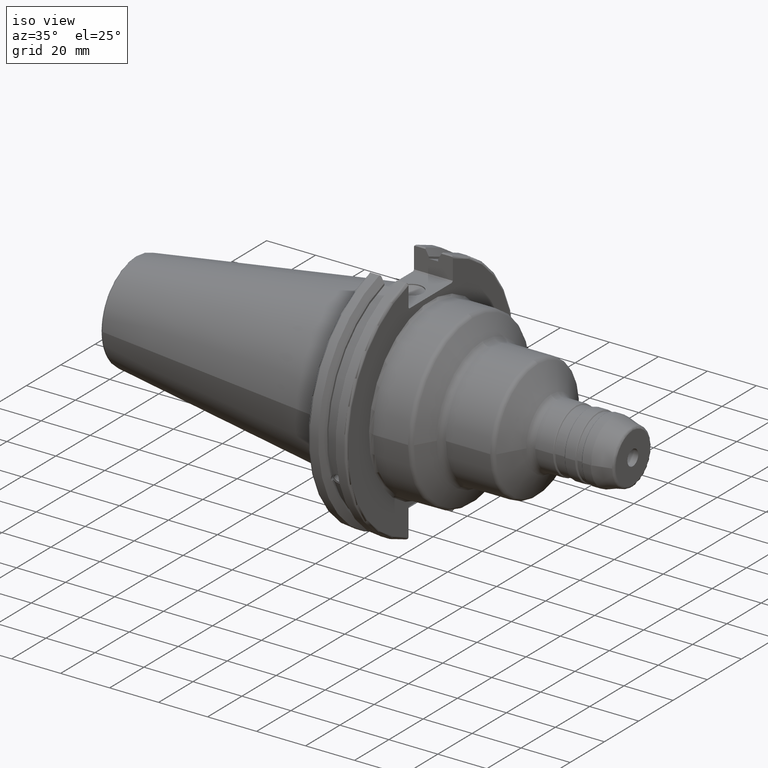
[diagram: clean part render]
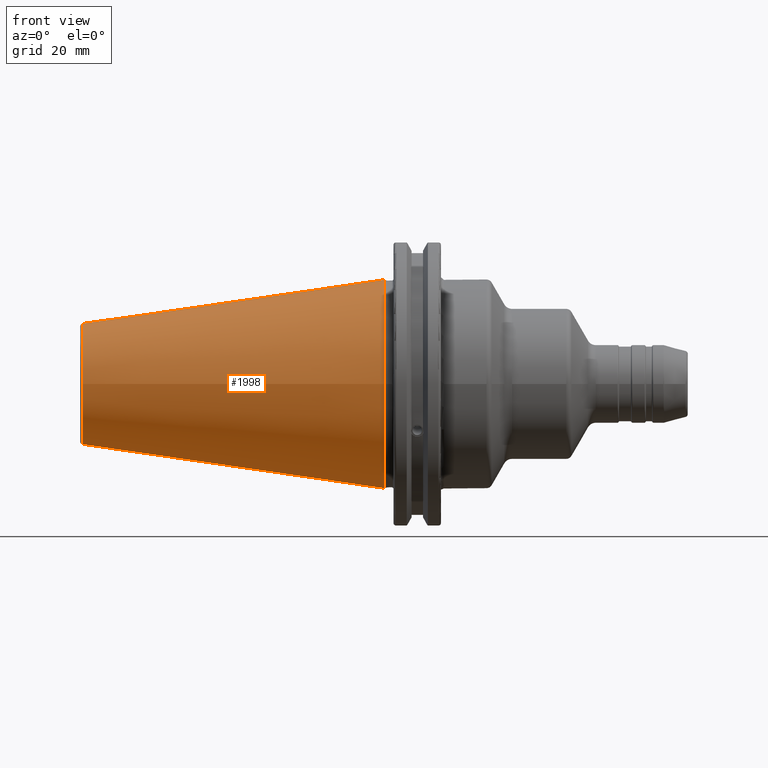
[diagram: tour spotlight — one face highlighted and labeled with its STEP entity id]
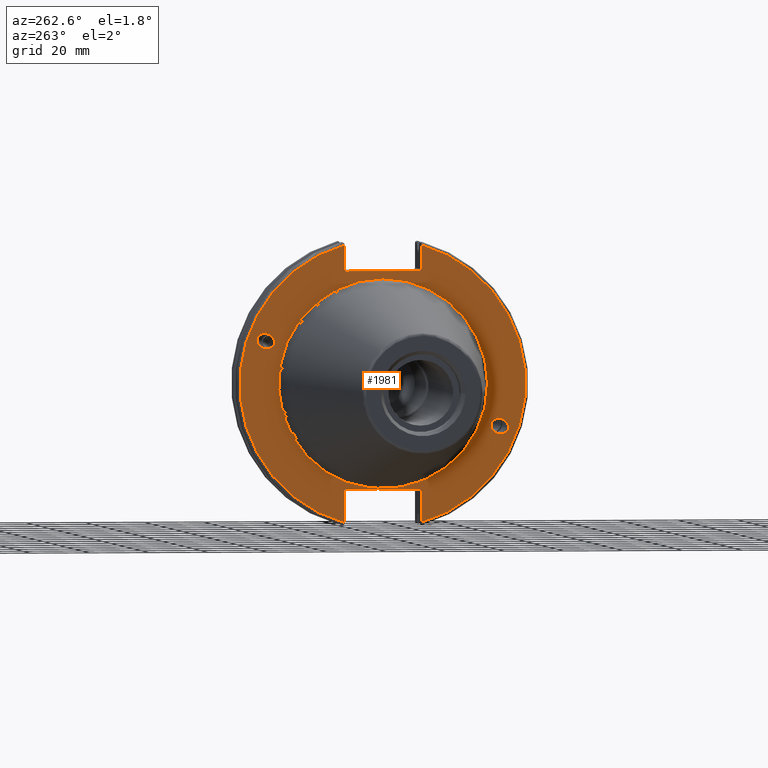
[diagram: tour spotlight — one face highlighted and labeled with its STEP entity id]
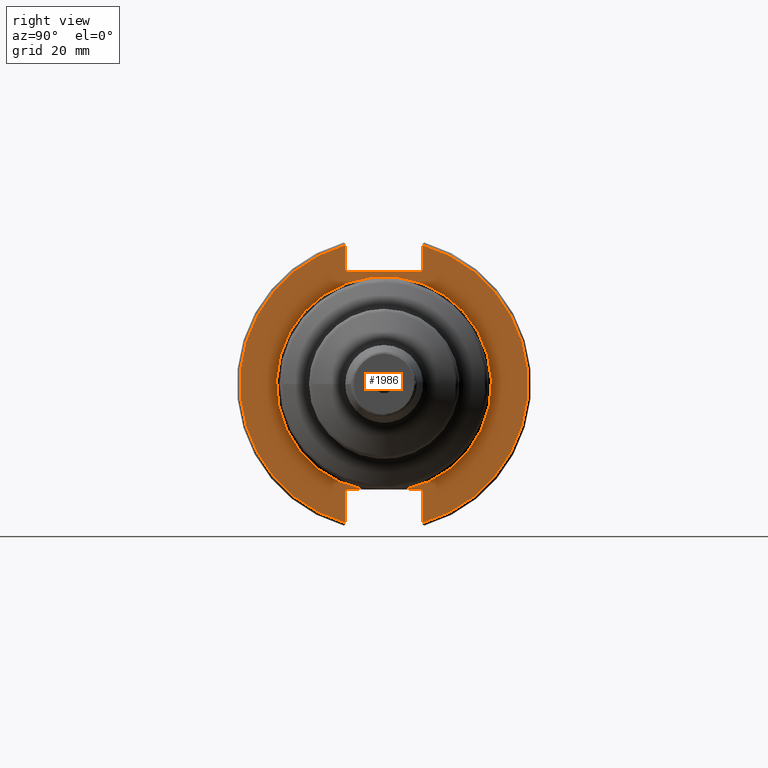
[diagram: tour spotlight — one face highlighted and labeled with its STEP entity id]
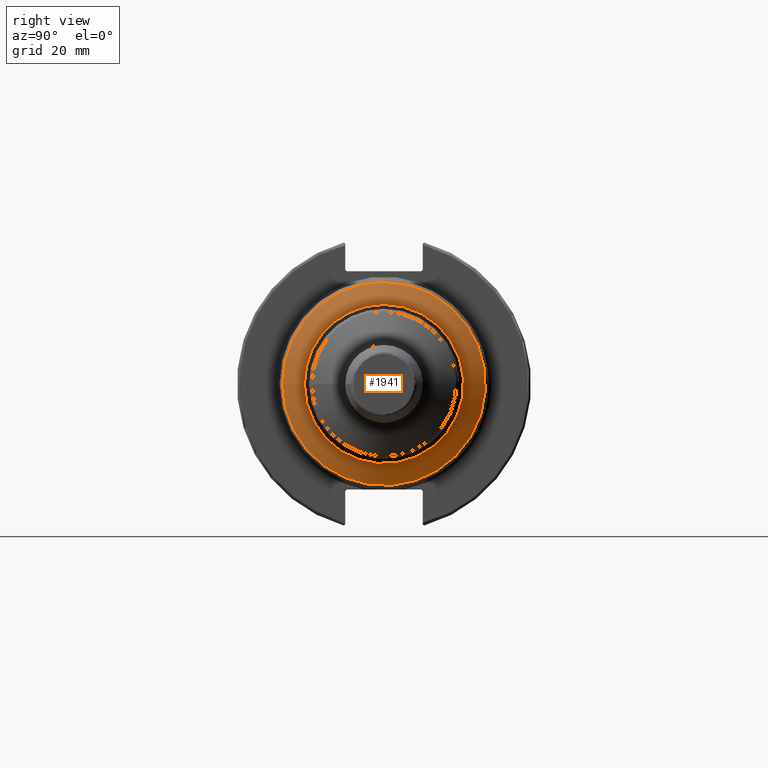
[diagram: tour spotlight — one face highlighted and labeled with its STEP entity id]
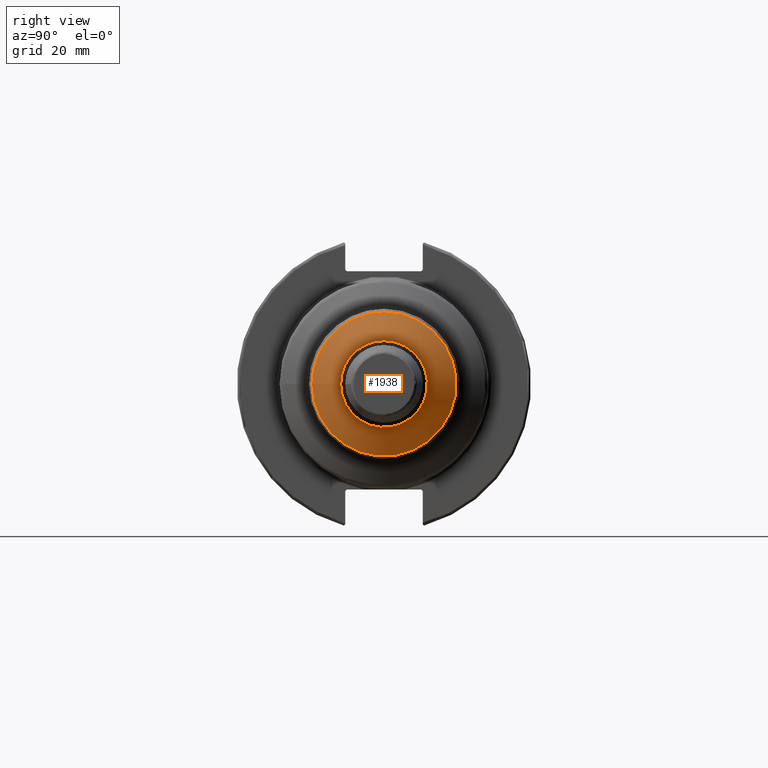
[diagram: tour spotlight — one face highlighted and labeled with its STEP entity id]
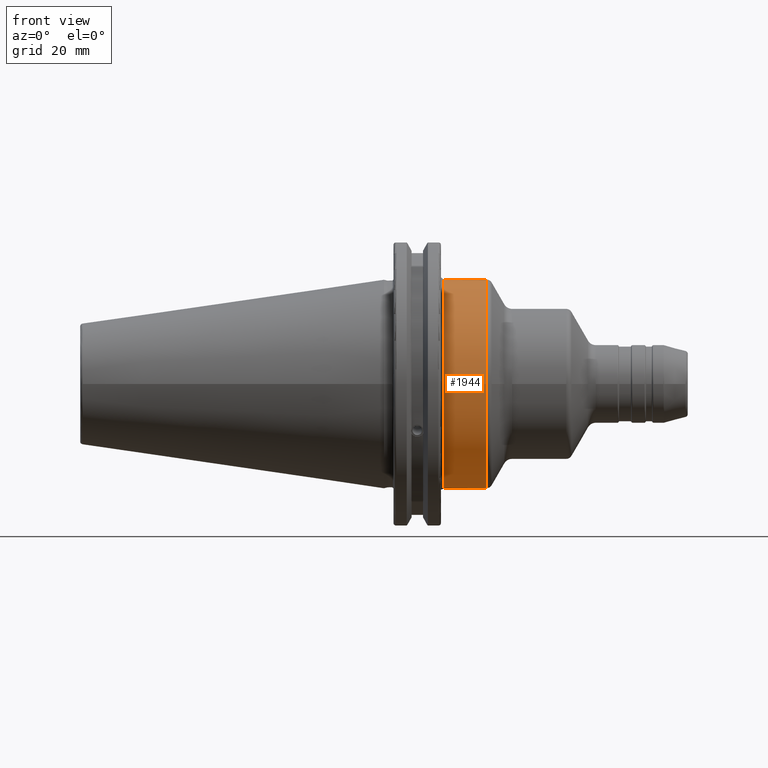
[diagram: tour spotlight — one face highlighted and labeled with its STEP entity id]
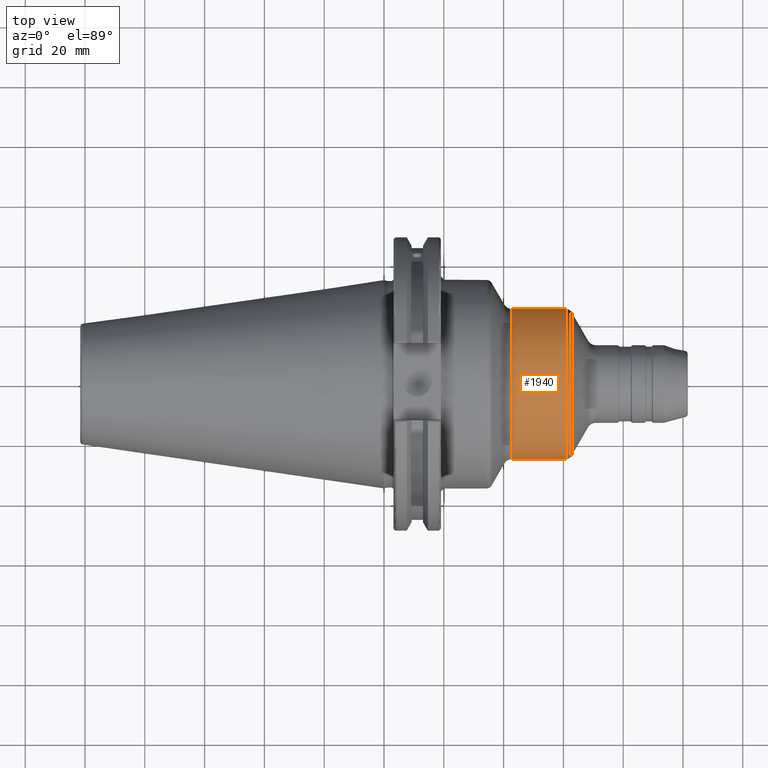
[diagram: tour spotlight — one face highlighted and labeled with its STEP entity id]
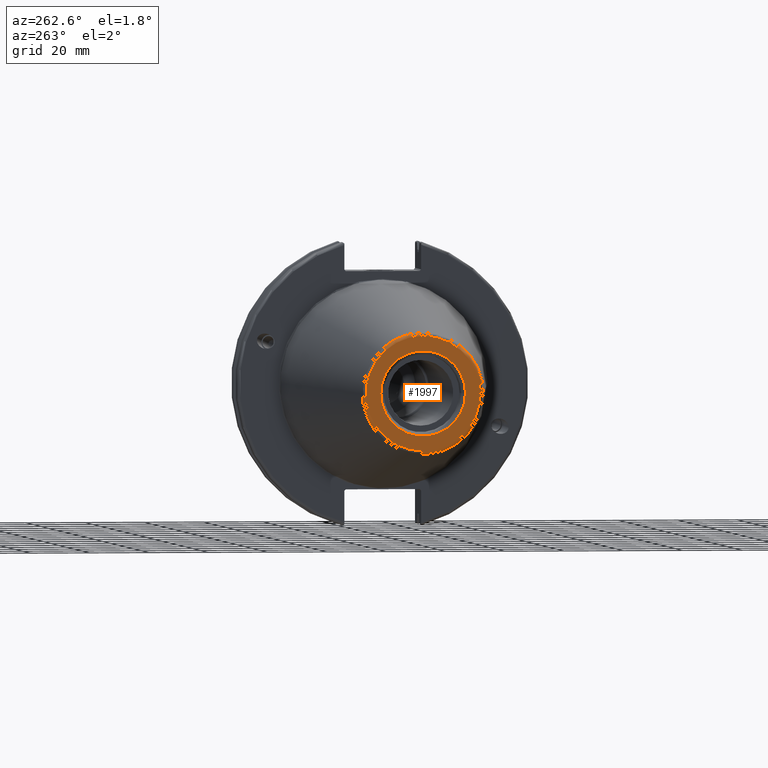
[diagram: tour spotlight — one face highlighted and labeled with its STEP entity id]
A machine part: a face-by-face anatomy tour. The part has 112 B-rep faces; the first image is the clean iso view, then the 8 largest visible faces are spotlighted one at a time (largest first), each with its STEP entity span.

Face 1 — front view, entity #1998. In plain terms, the highlighted conical surface has half-angle 8.297 deg.
Definition (entity closure, byte-faithful):
#164=CONICAL_SURFACE('',#2262,27.5166666666666,0.14481249823894);
#253=FACE_OUTER_BOUND('',#382,.T.);
#382=EDGE_LOOP('',(#1746,#1747,#1748,#1749,#1750));
#500=LINE('',#3945,#607);
#607=VECTOR('',#2820,27.5166666666666);
#749=CIRCLE('',#2256,20.233121911427);
#750=CIRCLE('',#2257,20.233121911427);
#754=CIRCLE('',#2263,34.925);
#954=VERTEX_POINT('',#3932);
#955=VERTEX_POINT('',#3933);
#958=VERTEX_POINT('',#3943);
#1234=EDGE_CURVE('',#954,#955,#749,.T.);
#1235=EDGE_CURVE('',#955,#954,#750,.T.);
#1239=EDGE_CURVE('',#958,#958,#754,.T.);
#1240=EDGE_CURVE('',#958,#955,#500,.T.);
#1746=ORIENTED_EDGE('',*,*,#1239,.F.);
#1747=ORIENTED_EDGE('',*,*,#1240,.T.);
#1748=ORIENTED_EDGE('',*,*,#1234,.F.);
#1749=ORIENTED_EDGE('',*,*,#1235,.F.);
#1750=ORIENTED_EDGE('',*,*,#1240,.F.);
#1998=ADVANCED_FACE('',(#253),#164,.T.);
#2256=AXIS2_PLACEMENT_3D('',#3934,#2804,#2805);
#2257=AXIS2_PLACEMENT_3D('',#3935,#2806,#2807);
#2262=AXIS2_PLACEMENT_3D('',#3942,#2816,#2817);
#2263=AXIS2_PLACEMENT_3D('',#3944,#2818,#2819);
#2804=DIRECTION('center_axis',(-1.,0.,0.));
#2805=DIRECTION('ref_axis',(0.,-1.,3.06161699786838E-17));
#2806=DIRECTION('center_axis',(-1.,0.,0.));
#2807=DIRECTION('ref_axis',(0.,-1.,3.06161699786838E-17));
#2816=DIRECTION('center_axis',(1.,0.,0.));
#2817=DIRECTION('ref_axis',(0.,1.,0.));
#2818=DIRECTION('center_axis',(1.,0.,0.));
#2819=DIRECTION('ref_axis',(0.,0.,-1.));
#2820=DIRECTION('',(-0.989532981063281,0.144306893071729,1.76724974695192E-17));
#3932=CARTESIAN_POINT('',(-100.744306893072,-2.47784279855872E-15,20.233121911427));
#3933=CARTESIAN_POINT('',(-100.744306893072,-20.233121911427,-2.47784279855872E-15));
#3934=CARTESIAN_POINT('Origin',(-100.744306893072,0.,-3.09730349819841E-15));
#3935=CARTESIAN_POINT('Origin',(-100.744306893072,0.,-3.09730349819841E-15));
#3942=CARTESIAN_POINT('Origin',(-50.8,0.,0.));
#3943=CARTESIAN_POINT('',(-8.88178419700125E-15,-34.925,-4.27707894602213E-15));
#3944=CARTESIAN_POINT('Origin',(0.,0.,0.));
#3945=CARTESIAN_POINT('',(-50.8,-27.5166666666666,-3.3698197756538E-15));

Face 2 — auxiliary view, entity #1981. In plain terms, the highlighted planar face has unit normal (-1, 0, 0).
Definition (entity closure, byte-faithful):
#31=ELLIPSE('',#2186,3.05193647190364,2.5);
#32=ELLIPSE('',#2220,3.05193647190364,2.5);
#44=PLANE('',#2230);
#104=FACE_BOUND('',#362,.T.);
#105=FACE_BOUND('',#363,.T.);
#106=FACE_BOUND('',#364,.T.);
#236=FACE_OUTER_BOUND('',#361,.T.);
#361=EDGE_LOOP('',(#1625,#1626,#1627,#1628,#1629,#1630,#1631,#1632,#1633,
#1634,#1635,#1636));
#362=EDGE_LOOP('',(#1637));
#363=EDGE_LOOP('',(#1638));
#364=EDGE_LOOP('',(#1639));
#462=LINE('',#3693,#569);
#463=LINE('',#3695,#570);
#464=LINE('',#3697,#571);
#465=LINE('',#3699,#572);
#466=LINE('',#3701,#573);
#467=LINE('',#3705,#574);
#468=LINE('',#3707,#575);
#469=LINE('',#3709,#576);
#470=LINE('',#3711,#577);
#471=LINE('',#3712,#578);
#569=VECTOR('',#2718,10.);
#570=VECTOR('',#2719,10.);
#571=VECTOR('',#2720,10.);
#572=VECTOR('',#2721,10.);
#573=VECTOR('',#2722,10.);
#574=VECTOR('',#2725,10.);
#575=VECTOR('',#2726,10.);
#576=VECTOR('',#2727,10.);
#577=VECTOR('',#2728,10.);
#578=VECTOR('',#2729,10.);
#737=CIRCLE('',#2228,35.125);
#739=CIRCLE('',#2231,48.2125);
#740=CIRCLE('',#2232,48.2125);
#860=VERTEX_POINT('',#3410);
#898=VERTEX_POINT('',#3669);
#903=VERTEX_POINT('',#3684);
#904=VERTEX_POINT('',#3689);
#905=VERTEX_POINT('',#3690);
#906=VERTEX_POINT('',#3692);
#907=VERTEX_POINT('',#3694);
#908=VERTEX_POINT('',#3696);
#909=VERTEX_POINT('',#3698);
#910=VERTEX_POINT('',#3700);
#911=VERTEX_POINT('',#3702);
#912=VERTEX_POINT('',#3704);
#913=VERTEX_POINT('',#3706);
#914=VERTEX_POINT('',#3708);
#915=VERTEX_POINT('',#3710);
#1104=EDGE_CURVE('',#860,#860,#31,.T.);
#1155=EDGE_CURVE('',#898,#898,#32,.T.);
#1162=EDGE_CURVE('',#903,#903,#737,.T.);
#1164=EDGE_CURVE('',#904,#905,#739,.T.);
#1165=EDGE_CURVE('',#904,#906,#462,.T.);
#1166=EDGE_CURVE('',#907,#906,#463,.T.);
#1167=EDGE_CURVE('',#907,#908,#464,.T.);
#1168=EDGE_CURVE('',#909,#908,#465,.T.);
#1169=EDGE_CURVE('',#909,#910,#466,.T.);
#1170=EDGE_CURVE('',#911,#910,#740,.T.);
#1171=EDGE_CURVE('',#911,#912,#467,.T.);
#1172=EDGE_CURVE('',#913,#912,#468,.T.);
#1173=EDGE_CURVE('',#913,#914,#469,.T.);
#1174=EDGE_CURVE('',#915,#914,#470,.T.);
#1175=EDGE_CURVE('',#915,#905,#471,.T.);
#1625=ORIENTED_EDGE('',*,*,#1164,.F.);
#1626=ORIENTED_EDGE('',*,*,#1165,.T.);
#1627=ORIENTED_EDGE('',*,*,#1166,.F.);
#1628=ORIENTED_EDGE('',*,*,#1167,.T.);
#1629=ORIENTED_EDGE('',*,*,#1168,.F.);
#1630=ORIENTED_EDGE('',*,*,#1169,.T.);
#1631=ORIENTED_EDGE('',*,*,#1170,.F.);
#1632=ORIENTED_EDGE('',*,*,#1171,.T.);
#1633=ORIENTED_EDGE('',*,*,#1172,.F.);
#1634=ORIENTED_EDGE('',*,*,#1173,.T.);
#1635=ORIENTED_EDGE('',*,*,#1174,.F.);
#1636=ORIENTED_EDGE('',*,*,#1175,.T.);
#1637=ORIENTED_EDGE('',*,*,#1104,.T.);
#1638=ORIENTED_EDGE('',*,*,#1155,.T.);
#1639=ORIENTED_EDGE('',*,*,#1162,.F.);
#1981=ADVANCED_FACE('',(#236,#104,#105,#106),#44,.T.);
#2186=AXIS2_PLACEMENT_3D('',#3412,#2608,#2609);
#2220=AXIS2_PLACEMENT_3D('',#3671,#2692,#2693);
#2228=AXIS2_PLACEMENT_3D('',#3686,#2710,#2711);
#2230=AXIS2_PLACEMENT_3D('',#3688,#2714,#2715);
#2231=AXIS2_PLACEMENT_3D('',#3691,#2716,#2717);
#2232=AXIS2_PLACEMENT_3D('',#3703,#2723,#2724);
#2608=DIRECTION('center_axis',(1.,0.,0.));
#2609=DIRECTION('ref_axis',(0.,-0.939692620785907,-0.342020143325671));
#2692=DIRECTION('center_axis',(1.,0.,0.));
#2693=DIRECTION('ref_axis',(0.,0.939692620785907,0.342020143325672));
#2710=DIRECTION('center_axis',(-1.,0.,0.));
#2711=DIRECTION('ref_axis',(0.,-1.,1.83697019872103E-16));
#2714=DIRECTION('center_axis',(-1.,0.,0.));
#2715=DIRECTION('ref_axis',(0.,0.,1.));
#2716=DIRECTION('center_axis',(1.,0.,0.));
#2717=DIRECTION('ref_axis',(0.,-1.,1.60812264967664E-16));
#2718=DIRECTION('',(0.,0.,-1.));
#2719=DIRECTION('',(0.,-0.707106781186549,0.707106781186546));
#2720=DIRECTION('',(0.,1.,0.));
#2721=DIRECTION('',(0.,-0.707106781186549,-0.707106781186546));
#2722=DIRECTION('',(0.,0.,1.));
#2723=DIRECTION('center_axis',(1.,0.,0.));
#2724=DIRECTION('ref_axis',(0.,1.,-6.12323399573677E-17));
#2725=DIRECTION('',(0.,0.,1.));
#2726=DIRECTION('',(0.,0.707106781186549,-0.707106781186546));
#2727=DIRECTION('',(0.,-1.,0.));
#2728=DIRECTION('',(0.,0.707106781186549,0.707106781186546));
#2729=DIRECTION('',(0.,0.,-1.));
#3410=CARTESIAN_POINT('',(3.175,-36.5992078912529,-13.3210222701368));
#3412=CARTESIAN_POINT('Origin',(3.175,-39.4670900730082,-14.3648460196781));
#3669=CARTESIAN_POINT('',(3.175,36.5992078912529,13.3210222701368));
#3671=CARTESIAN_POINT('Origin',(3.175,39.4670900730082,14.3648460196781));
#3684=CARTESIAN_POINT('',(3.175,-4.30157188200508E-15,35.125));
#3686=CARTESIAN_POINT('Origin',(3.175,0.,0.));
#3688=CARTESIAN_POINT('Origin',(3.175,49.2125,0.));
#3689=CARTESIAN_POINT('',(3.175,-12.95,46.4407434937254));
#3690=CARTESIAN_POINT('',(3.175,-12.95,-46.4407434937254));
#3691=CARTESIAN_POINT('Origin',(3.175,0.,0.));
#3692=CARTESIAN_POINT('',(3.175,-12.95,38.219));
#3693=CARTESIAN_POINT('',(3.175,-12.95,18.8595));
#3694=CARTESIAN_POINT('',(3.175,-12.45,37.719));
#3695=CARTESIAN_POINT('',(3.175,12.2703750000001,12.998625));
#3696=CARTESIAN_POINT('',(3.175,12.45,37.719));
#3697=CARTESIAN_POINT('',(3.175,24.60625,37.719));
#3698=CARTESIAN_POINT('',(3.175,12.95,38.219));
#3699=CARTESIAN_POINT('',(3.175,12.335875,37.604875));
#3700=CARTESIAN_POINT('',(3.175,12.95,46.4407434937254));
#3701=CARTESIAN_POINT('',(3.175,12.95,18.8595));
#3702=CARTESIAN_POINT('',(3.175,12.95,-46.4407434937254));
#3703=CARTESIAN_POINT('Origin',(3.175,0.,0.));
#3704=CARTESIAN_POINT('',(3.175,12.95,-35.806));
#3705=CARTESIAN_POINT('',(3.175,12.95,-17.653));
#3706=CARTESIAN_POINT('',(3.175,12.45,-35.306));
#3707=CARTESIAN_POINT('',(3.175,12.939125,-35.795125));
#3708=CARTESIAN_POINT('',(3.175,-12.45,-35.306));
#3709=CARTESIAN_POINT('',(3.175,24.60625,-35.306));
#3710=CARTESIAN_POINT('',(3.175,-12.95,-35.806));
#3711=CARTESIAN_POINT('',(3.175,11.6671250000001,-11.188875));
#3712=CARTESIAN_POINT('',(3.175,-12.95,-17.653));

Face 3 — right view, entity #1986. In plain terms, the highlighted planar face has unit normal (1, 0, 0).
Definition (entity closure, byte-faithful):
#47=PLANE('',#2240);
#241=FACE_OUTER_BOUND('',#369,.T.);
#369=EDGE_LOOP('',(#1667,#1668,#1669,#1670,#1671,#1672,#1673,#1674,#1675,
#1676,#1677,#1678,#1679,#1680));
#475=LINE('',#3764,#582);
#478=LINE('',#3779,#585);
#479=LINE('',#3780,#586);
#480=LINE('',#3782,#587);
#481=LINE('',#3784,#588);
#482=LINE('',#3786,#589);
#483=LINE('',#3788,#590);
#484=LINE('',#3790,#591);
#485=LINE('',#3794,#592);
#486=LINE('',#3796,#593);
#487=LINE('',#3797,#594);
#582=VECTOR('',#2747,10.);
#585=VECTOR('',#2752,10.);
#586=VECTOR('',#2753,10.);
#587=VECTOR('',#2754,10.);
#588=VECTOR('',#2755,10.);
#589=VECTOR('',#2756,10.);
#590=VECTOR('',#2757,10.);
#591=VECTOR('',#2758,10.);
#592=VECTOR('',#2761,10.);
#593=VECTOR('',#2762,10.);
#594=VECTOR('',#2763,10.);
#707=CIRCLE('',#2165,35.95);
#742=CIRCLE('',#2236,48.2125);
#744=CIRCLE('',#2241,48.2125);
#836=VERTEX_POINT('',#3195);
#837=VERTEX_POINT('',#3202);
#918=VERTEX_POINT('',#3719);
#919=VERTEX_POINT('',#3726);
#925=VERTEX_POINT('',#3763);
#927=VERTEX_POINT('',#3778);
#928=VERTEX_POINT('',#3781);
#929=VERTEX_POINT('',#3783);
#930=VERTEX_POINT('',#3785);
#931=VERTEX_POINT('',#3787);
#932=VERTEX_POINT('',#3789);
#933=VERTEX_POINT('',#3791);
#934=VERTEX_POINT('',#3793);
#935=VERTEX_POINT('',#3795);
#1073=EDGE_CURVE('',#836,#837,#707,.T.);
#1179=EDGE_CURVE('',#918,#919,#742,.T.);
#1187=EDGE_CURVE('',#925,#919,#475,.T.);
#1192=EDGE_CURVE('',#836,#927,#478,.T.);
#1193=EDGE_CURVE('',#925,#927,#479,.T.);
#1194=EDGE_CURVE('',#918,#928,#480,.T.);
#1195=EDGE_CURVE('',#929,#928,#481,.T.);
#1196=EDGE_CURVE('',#929,#930,#482,.T.);
#1197=EDGE_CURVE('',#931,#930,#483,.T.);
#1198=EDGE_CURVE('',#931,#932,#484,.T.);
#1199=EDGE_CURVE('',#933,#932,#744,.T.);
#1200=EDGE_CURVE('',#933,#934,#485,.T.);
#1201=EDGE_CURVE('',#935,#934,#486,.T.);
#1202=EDGE_CURVE('',#935,#837,#487,.T.);
#1667=ORIENTED_EDGE('',*,*,#1073,.F.);
#1668=ORIENTED_EDGE('',*,*,#1192,.T.);
#1669=ORIENTED_EDGE('',*,*,#1193,.F.);
#1670=ORIENTED_EDGE('',*,*,#1187,.T.);
#1671=ORIENTED_EDGE('',*,*,#1179,.F.);
#1672=ORIENTED_EDGE('',*,*,#1194,.T.);
#1673=ORIENTED_EDGE('',*,*,#1195,.F.);
#1674=ORIENTED_EDGE('',*,*,#1196,.T.);
#1675=ORIENTED_EDGE('',*,*,#1197,.F.);
#1676=ORIENTED_EDGE('',*,*,#1198,.T.);
#1677=ORIENTED_EDGE('',*,*,#1199,.F.);
#1678=ORIENTED_EDGE('',*,*,#1200,.T.);
#1679=ORIENTED_EDGE('',*,*,#1201,.F.);
#1680=ORIENTED_EDGE('',*,*,#1202,.T.);
#1986=ADVANCED_FACE('',(#241),#47,.T.);
#2165=AXIS2_PLACEMENT_3D('',#3203,#2554,#2555);
#2236=AXIS2_PLACEMENT_3D('',#3727,#2737,#2738);
#2240=AXIS2_PLACEMENT_3D('',#3777,#2750,#2751);
#2241=AXIS2_PLACEMENT_3D('',#3792,#2759,#2760);
#2554=DIRECTION('center_axis',(1.,0.,0.));
#2555=DIRECTION('ref_axis',(0.,-1.,-1.22464679914735E-16));
#2737=DIRECTION('center_axis',(-1.,0.,0.));
#2738=DIRECTION('ref_axis',(0.,1.,-6.12323399573677E-17));
#2747=DIRECTION('',(0.,0.,-1.));
#2750=DIRECTION('center_axis',(1.,0.,0.));
#2751=DIRECTION('ref_axis',(0.,0.,-1.));
#2752=DIRECTION('',(0.,1.,0.));
#2753=DIRECTION('',(0.,-0.707106781186549,0.707106781186546));
#2754=DIRECTION('',(0.,0.,-1.));
#2755=DIRECTION('',(0.,0.707106781186549,0.707106781186546));
#2756=DIRECTION('',(0.,-1.,0.));
#2757=DIRECTION('',(0.,0.707106781186549,-0.707106781186546));
#2758=DIRECTION('',(0.,0.,1.));
#2759=DIRECTION('center_axis',(-1.,0.,0.));
#2760=DIRECTION('ref_axis',(0.,-1.,1.60812264967664E-16));
#2761=DIRECTION('',(0.,0.,1.));
#2762=DIRECTION('',(0.,-0.707106781186549,-0.707106781186546));
#2763=DIRECTION('',(0.,1.,0.));
#3195=CARTESIAN_POINT('',(19.05,6.77413197391373,-35.306));
#3202=CARTESIAN_POINT('',(19.05,-6.77413197391373,-35.306));
#3203=CARTESIAN_POINT('Origin',(19.05,0.,0.));
#3719=CARTESIAN_POINT('',(19.05,12.95,46.4407434937254));
#3726=CARTESIAN_POINT('',(19.05,12.95,-46.4407434937254));
#3727=CARTESIAN_POINT('Origin',(19.05,0.,0.));
#3763=CARTESIAN_POINT('',(19.05,12.95,-35.806));
#3764=CARTESIAN_POINT('',(19.05,12.95,-17.653));
#3777=CARTESIAN_POINT('Origin',(19.05,0.,0.));
#3778=CARTESIAN_POINT('',(19.05,12.45,-35.306));
#3779=CARTESIAN_POINT('',(19.05,-3.33066907387547E-15,-35.306));
#3780=CARTESIAN_POINT('',(19.05,0.635999999999982,-23.492));
#3781=CARTESIAN_POINT('',(19.05,12.95,38.219));
#3782=CARTESIAN_POINT('',(19.05,12.95,18.8595));
#3783=CARTESIAN_POINT('',(19.05,12.45,37.719));
#3784=CARTESIAN_POINT('',(19.05,0.0327499999999836,25.30175));
#3785=CARTESIAN_POINT('',(19.05,-12.45,37.719));
#3786=CARTESIAN_POINT('',(19.05,0.,37.719));
#3787=CARTESIAN_POINT('',(19.05,-12.95,38.219));
#3788=CARTESIAN_POINT('',(19.05,-0.0327499999999817,25.30175));
#3789=CARTESIAN_POINT('',(19.05,-12.95,46.4407434937254));
#3790=CARTESIAN_POINT('',(19.05,-12.95,18.8595));
#3791=CARTESIAN_POINT('',(19.05,-12.95,-46.4407434937254));
#3792=CARTESIAN_POINT('Origin',(19.05,0.,0.));
#3793=CARTESIAN_POINT('',(19.05,-12.95,-35.806));
#3794=CARTESIAN_POINT('',(19.05,-12.95,-17.653));
#3795=CARTESIAN_POINT('',(19.05,-12.45,-35.306));
#3796=CARTESIAN_POINT('',(19.05,-0.635999999999989,-23.492));
#3797=CARTESIAN_POINT('',(19.05,-3.33066907387547E-15,-35.306));

Face 4 — right view, entity #1941. In plain terms, the highlighted conical surface has half-angle 60 deg.
Definition (entity closure, byte-faithful):
#157=CONICAL_SURFACE('',#2139,30.0375,1.0471975511966);
#196=FACE_OUTER_BOUND('',#310,.T.);
#310=EDGE_LOOP('',(#1425,#1426,#1427,#1428,#1429,#1430));
#429=LINE('',#3155,#536);
#536=VECTOR('',#2501,30.0375);
#683=CIRCLE('',#2131,26.625);
#687=CIRCLE('',#2135,26.625);
#690=CIRCLE('',#2140,33.95);
#691=CIRCLE('',#2141,33.95);
#817=VERTEX_POINT('',#3138);
#818=VERTEX_POINT('',#3139);
#823=VERTEX_POINT('',#3154);
#824=VERTEX_POINT('',#3156);
#1044=EDGE_CURVE('',#817,#818,#683,.T.);
#1048=EDGE_CURVE('',#818,#817,#687,.T.);
#1052=EDGE_CURVE('',#817,#823,#429,.T.);
#1053=EDGE_CURVE('',#824,#823,#690,.T.);
#1054=EDGE_CURVE('',#823,#824,#691,.T.);
#1425=ORIENTED_EDGE('',*,*,#1044,.F.);
#1426=ORIENTED_EDGE('',*,*,#1052,.T.);
#1427=ORIENTED_EDGE('',*,*,#1053,.F.);
#1428=ORIENTED_EDGE('',*,*,#1054,.F.);
#1429=ORIENTED_EDGE('',*,*,#1052,.F.);
#1430=ORIENTED_EDGE('',*,*,#1048,.F.);
#1941=ADVANCED_FACE('',(#196),#157,.T.);
#2131=AXIS2_PLACEMENT_3D('',#3140,#2482,#2483);
#2135=AXIS2_PLACEMENT_3D('',#3146,#2490,#2491);
#2139=AXIS2_PLACEMENT_3D('',#3153,#2499,#2500);
#2140=AXIS2_PLACEMENT_3D('',#3157,#2502,#2503);
#2141=AXIS2_PLACEMENT_3D('',#3158,#2504,#2505);
#2482=DIRECTION('center_axis',(1.,0.,0.));
#2483=DIRECTION('ref_axis',(0.,-1.,3.06161699786838E-17));
#2490=DIRECTION('center_axis',(1.,0.,0.));
#2491=DIRECTION('ref_axis',(0.,-1.,3.06161699786838E-17));
#2499=DIRECTION('center_axis',(-1.,0.,0.));
#2500=DIRECTION('ref_axis',(0.,1.,0.));
#2501=DIRECTION('',(-0.5,-0.866025403784438,-1.06057523872491E-16));
#2502=DIRECTION('center_axis',(-1.,0.,0.));
#2503=DIRECTION('ref_axis',(0.,-1.,3.06161699786838E-17));
#2504=DIRECTION('center_axis',(-1.,0.,0.));
#2505=DIRECTION('ref_axis',(0.,-1.,3.06161699786838E-17));
#3138=CARTESIAN_POINT('',(40.2339745962156,-26.625,-3.26062210272983E-15));
#3139=CARTESIAN_POINT('',(40.2339745962156,-3.26062210272983E-15,26.625));
#3140=CARTESIAN_POINT('Origin',(40.2339745962156,0.,-4.07577762841228E-15));
#3146=CARTESIAN_POINT('Origin',(40.2339745962156,0.,-4.07577762841228E-15));
#3153=CARTESIAN_POINT('Origin',(38.263766802606,0.,0.));
#3154=CARTESIAN_POINT('',(36.0048838744015,-33.95,-4.15767588310526E-15));
#3155=CARTESIAN_POINT('',(38.263766802606,-30.0375,-3.67853282293886E-15));
#3156=CARTESIAN_POINT('',(36.0048838744015,-4.15767588310526E-15,33.95));
#3157=CARTESIAN_POINT('Origin',(36.0048838744015,0.,-5.19709485388158E-15));
#3158=CARTESIAN_POINT('Origin',(36.0048838744015,0.,-5.19709485388158E-15));

Face 5 — right view, entity #1938. In plain terms, the highlighted conical surface has half-angle 60 deg.
Definition (entity closure, byte-faithful):
#156=CONICAL_SURFACE('',#2127,19.0625,1.0471975511966);
#193=FACE_OUTER_BOUND('',#307,.T.);
#307=EDGE_LOOP('',(#1407,#1408,#1409,#1410,#1411,#1412));
#427=LINE('',#3133,#534);
#534=VECTOR('',#2475,19.0625);
#678=CIRCLE('',#2124,14.5);
#680=CIRCLE('',#2126,14.5);
#681=CIRCLE('',#2128,24.125);
#682=CIRCLE('',#2129,24.125);
#813=VERTEX_POINT('',#3126);
#814=VERTEX_POINT('',#3127);
#815=VERTEX_POINT('',#3132);
#816=VERTEX_POINT('',#3134);
#1038=EDGE_CURVE('',#813,#814,#678,.T.);
#1040=EDGE_CURVE('',#814,#813,#680,.T.);
#1041=EDGE_CURVE('',#813,#815,#427,.T.);
#1042=EDGE_CURVE('',#816,#815,#681,.T.);
#1043=EDGE_CURVE('',#815,#816,#682,.T.);
#1407=ORIENTED_EDGE('',*,*,#1038,.F.);
#1408=ORIENTED_EDGE('',*,*,#1041,.T.);
#1409=ORIENTED_EDGE('',*,*,#1042,.F.);
#1410=ORIENTED_EDGE('',*,*,#1043,.F.);
#1411=ORIENTED_EDGE('',*,*,#1041,.F.);
#1412=ORIENTED_EDGE('',*,*,#1040,.F.);
#1938=ADVANCED_FACE('',(#193),#156,.T.);
#2124=AXIS2_PLACEMENT_3D('',#3128,#2467,#2468);
#2126=AXIS2_PLACEMENT_3D('',#3130,#2471,#2472);
#2127=AXIS2_PLACEMENT_3D('',#3131,#2473,#2474);
#2128=AXIS2_PLACEMENT_3D('',#3135,#2476,#2477);
#2129=AXIS2_PLACEMENT_3D('',#3136,#2478,#2479);
#2467=DIRECTION('center_axis',(1.,0.,0.));
#2468=DIRECTION('ref_axis',(0.,-1.,3.06161699786838E-17));
#2471=DIRECTION('center_axis',(1.,0.,0.));
#2472=DIRECTION('ref_axis',(0.,-1.,3.06161699786838E-17));
#2473=DIRECTION('center_axis',(-1.,0.,0.));
#2474=DIRECTION('ref_axis',(0.,1.,0.));
#2475=DIRECTION('',(-0.5,-0.866025403784439,-1.06057523872491E-16));
#2476=DIRECTION('center_axis',(-1.,0.,0.));
#2477=DIRECTION('ref_axis',(0.,-1.,3.06161699786838E-17));
#2478=DIRECTION('center_axis',(-1.,0.,0.));
#2479=DIRECTION('ref_axis',(0.,-1.,3.06161699786838E-17));
#3126=CARTESIAN_POINT('',(68.2339745962156,-14.5,-1.77573785876366E-15));
#3127=CARTESIAN_POINT('',(68.2339745962156,-1.77573785876366E-15,14.5));
#3128=CARTESIAN_POINT('Origin',(68.2339745962156,0.,-2.21967232345458E-15));
#3130=CARTESIAN_POINT('Origin',(68.2339745962156,0.,-2.21967232345458E-15));
#3131=CARTESIAN_POINT('Origin',(65.5998139930379,0.,0.));
#3132=CARTESIAN_POINT('',(62.6769782552654,-24.125,-2.95446040294299E-15));
#3133=CARTESIAN_POINT('',(65.5998139930379,-19.0625,-2.33448296087464E-15));
#3134=CARTESIAN_POINT('',(62.6769782552654,-2.95446040294299E-15,24.125));
#3135=CARTESIAN_POINT('Origin',(62.6769782552654,0.,-3.69307550367874E-15));
#3136=CARTESIAN_POINT('Origin',(62.6769782552654,0.,-3.69307550367874E-15));

Face 6 — front view, entity #1944. In plain terms, the highlighted cylindrical surface (bore or boss wall) has radius 34.95 mm, axis along (1, 0, 0).
Definition (entity closure, byte-faithful):
#199=FACE_OUTER_BOUND('',#313,.T.);
#313=EDGE_LOOP('',(#1443,#1444,#1445,#1446,#1447,#1448));
#430=LINE('',#3169,#537);
#537=VECTOR('',#2520,34.95);
#694=CIRCLE('',#2146,34.95);
#695=CIRCLE('',#2147,34.95);
#696=CIRCLE('',#2149,34.95);
#697=CIRCLE('',#2150,34.95);
#825=VERTEX_POINT('',#3162);
#826=VERTEX_POINT('',#3164);
#827=VERTEX_POINT('',#3168);
#828=VERTEX_POINT('',#3170);
#1057=EDGE_CURVE('',#825,#826,#694,.T.);
#1058=EDGE_CURVE('',#826,#825,#695,.T.);
#1059=EDGE_CURVE('',#826,#827,#430,.T.);
#1060=EDGE_CURVE('',#828,#827,#696,.T.);
#1061=EDGE_CURVE('',#827,#828,#697,.T.);
#1443=ORIENTED_EDGE('',*,*,#1058,.F.);
#1444=ORIENTED_EDGE('',*,*,#1059,.T.);
#1445=ORIENTED_EDGE('',*,*,#1060,.F.);
#1446=ORIENTED_EDGE('',*,*,#1061,.F.);
#1447=ORIENTED_EDGE('',*,*,#1059,.F.);
#1448=ORIENTED_EDGE('',*,*,#1057,.F.);
#1890=CYLINDRICAL_SURFACE('',#2148,34.95);
#1944=ADVANCED_FACE('',(#199),#1890,.T.);
#2146=AXIS2_PLACEMENT_3D('',#3165,#2514,#2515);
#2147=AXIS2_PLACEMENT_3D('',#3166,#2516,#2517);
#2148=AXIS2_PLACEMENT_3D('',#3167,#2518,#2519);
#2149=AXIS2_PLACEMENT_3D('',#3171,#2521,#2522);
#2150=AXIS2_PLACEMENT_3D('',#3172,#2523,#2524);
#2514=DIRECTION('center_axis',(1.,0.,0.));
#2515=DIRECTION('ref_axis',(0.,-1.,1.83697019872103E-16));
#2516=DIRECTION('center_axis',(1.,0.,0.));
#2517=DIRECTION('ref_axis',(0.,-1.,1.83697019872103E-16));
#2518=DIRECTION('center_axis',(1.,0.,0.));
#2519=DIRECTION('ref_axis',(0.,1.,0.));
#2520=DIRECTION('',(-1.,0.,0.));
#2521=DIRECTION('center_axis',(-1.,0.,0.));
#2522=DIRECTION('ref_axis',(0.,-1.,-1.22464679914735E-16));
#2523=DIRECTION('center_axis',(-1.,0.,0.));
#2524=DIRECTION('ref_axis',(0.,-1.,-1.22464679914735E-16));
#3162=CARTESIAN_POINT('',(34.2728330668327,-4.28014056302E-15,34.95));
#3164=CARTESIAN_POINT('',(34.2728330668327,-34.95,-4.28014056302E-15));
#3165=CARTESIAN_POINT('Origin',(34.2728330668327,0.,0.));
#3166=CARTESIAN_POINT('Origin',(34.2728330668327,0.,0.));
#3167=CARTESIAN_POINT('Origin',(27.238766802606,0.,0.));
#3168=CARTESIAN_POINT('',(20.05,-34.95,-4.28014056302E-15));
#3169=CARTESIAN_POINT('',(27.238766802606,-34.95,-4.28014056302E-15));
#3170=CARTESIAN_POINT('',(20.05,-4.28014056302E-15,-34.95));
#3171=CARTESIAN_POINT('Origin',(20.05,0.,0.));
#3172=CARTESIAN_POINT('Origin',(20.05,0.,0.));

Face 7 — top view, entity #1940. In plain terms, the highlighted cylindrical surface (bore or boss wall) has radius 25.125 mm, axis along (1, 0, 0).
Definition (entity closure, byte-faithful):
#195=FACE_OUTER_BOUND('',#309,.T.);
#309=EDGE_LOOP('',(#1419,#1420,#1421,#1422,#1423,#1424));
#428=LINE('',#3151,#535);
#535=VECTOR('',#2496,25.125);
#685=CIRCLE('',#2133,25.125);
#686=CIRCLE('',#2134,25.125);
#688=CIRCLE('',#2137,25.125);
#689=CIRCLE('',#2138,25.125);
#819=VERTEX_POINT('',#3141);
#820=VERTEX_POINT('',#3143);
#821=VERTEX_POINT('',#3148);
#822=VERTEX_POINT('',#3149);
#1046=EDGE_CURVE('',#819,#820,#685,.T.);
#1047=EDGE_CURVE('',#820,#819,#686,.T.);
#1049=EDGE_CURVE('',#821,#822,#688,.T.);
#1050=EDGE_CURVE('',#821,#820,#428,.T.);
#1051=EDGE_CURVE('',#822,#821,#689,.T.);
#1419=ORIENTED_EDGE('',*,*,#1049,.F.);
#1420=ORIENTED_EDGE('',*,*,#1050,.T.);
#1421=ORIENTED_EDGE('',*,*,#1046,.F.);
#1422=ORIENTED_EDGE('',*,*,#1047,.F.);
#1423=ORIENTED_EDGE('',*,*,#1050,.F.);
#1424=ORIENTED_EDGE('',*,*,#1051,.F.);
#1889=CYLINDRICAL_SURFACE('',#2136,25.125);
#1940=ADVANCED_FACE('',(#195),#1889,.T.);
#2133=AXIS2_PLACEMENT_3D('',#3144,#2486,#2487);
#2134=AXIS2_PLACEMENT_3D('',#3145,#2488,#2489);
#2136=AXIS2_PLACEMENT_3D('',#3147,#2492,#2493);
#2137=AXIS2_PLACEMENT_3D('',#3150,#2494,#2495);
#2138=AXIS2_PLACEMENT_3D('',#3152,#2497,#2498);
#2486=DIRECTION('center_axis',(-1.,0.,0.));
#2487=DIRECTION('ref_axis',(0.,-1.,1.83697019872103E-16));
#2488=DIRECTION('center_axis',(-1.,0.,0.));
#2489=DIRECTION('ref_axis',(0.,-1.,1.83697019872103E-16));
#2492=DIRECTION('center_axis',(1.,0.,0.));
#2493=DIRECTION('ref_axis',(0.,1.,0.));
#2494=DIRECTION('center_axis',(1.,0.,0.));
#2495=DIRECTION('ref_axis',(0.,-1.,1.83697019872103E-16));
#2496=DIRECTION('',(-1.,0.,0.));
#2497=DIRECTION('center_axis',(1.,0.,0.));
#2498=DIRECTION('ref_axis',(0.,-1.,1.83697019872103E-16));
#3141=CARTESIAN_POINT('',(42.8320508075689,-3.07692508285772E-15,25.125));
#3143=CARTESIAN_POINT('',(42.8320508075689,-25.125,-3.07692508285772E-15));
#3144=CARTESIAN_POINT('Origin',(42.8320508075689,0.,0.));
#3145=CARTESIAN_POINT('Origin',(42.8320508075689,0.,0.));
#3147=CARTESIAN_POINT('Origin',(51.5998139930379,0.,0.));
#3148=CARTESIAN_POINT('',(60.9449274476965,-25.125,-3.07692508285772E-15));
#3149=CARTESIAN_POINT('',(60.9449274476965,-3.07692508285772E-15,25.125));
#3150=CARTESIAN_POINT('Origin',(60.9449274476965,0.,0.));
#3151=CARTESIAN_POINT('',(51.5998139930379,-25.125,-3.07692508285772E-15));
#3152=CARTESIAN_POINT('Origin',(60.9449274476965,0.,0.));

Face 8 — auxiliary view, entity #1997. In plain terms, the highlighted planar face has unit normal (-1, 0, 0).
Definition (entity closure, byte-faithful):
#53=PLANE('',#2260);
#107=FACE_BOUND('',#381,.T.);
#252=FACE_OUTER_BOUND('',#380,.T.);
#380=EDGE_LOOP('',(#1744));
#381=EDGE_LOOP('',(#1745));
#752=CIRCLE('',#2259,19.2435889303637);
#753=CIRCLE('',#2261,14.2875);
#956=VERTEX_POINT('',#3936);
#957=VERTEX_POINT('',#3940);
#1237=EDGE_CURVE('',#956,#956,#752,.T.);
#1238=EDGE_CURVE('',#957,#957,#753,.T.);
#1744=ORIENTED_EDGE('',*,*,#1237,.F.);
#1745=ORIENTED_EDGE('',*,*,#1238,.T.);
#1997=ADVANCED_FACE('',(#252,#107),#53,.T.);
#2259=AXIS2_PLACEMENT_3D('',#3938,#2810,#2811);
#2260=AXIS2_PLACEMENT_3D('',#3939,#2812,#2813);
#2261=AXIS2_PLACEMENT_3D('',#3941,#2814,#2815);
#2810=DIRECTION('center_axis',(1.,0.,0.));
#2811=DIRECTION('ref_axis',(0.,-1.,1.83697019872103E-16));
#2812=DIRECTION('center_axis',(-1.,0.,0.));
#2813=DIRECTION('ref_axis',(0.,0.,1.));
#2814=DIRECTION('center_axis',(1.,0.,0.));
#2815=DIRECTION('ref_axis',(0.,0.,-1.));
#3936=CARTESIAN_POINT('',(-101.6,-2.35665995876774E-15,19.2435889303637));
#3938=CARTESIAN_POINT('Origin',(-101.6,0.,0.));
#3939=CARTESIAN_POINT('Origin',(-101.6,20.1083333333333,0.));
#3940=CARTESIAN_POINT('',(-101.6,-14.2875,-1.74971411428178E-15));
#3941=CARTESIAN_POINT('Origin',(-101.6,0.,0.));